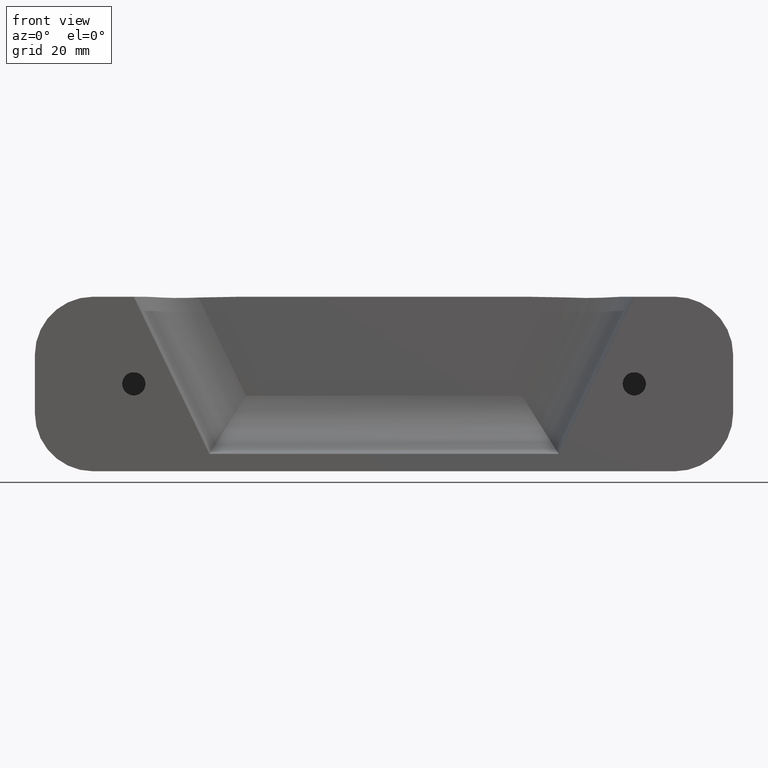
[diagram: clean part render]
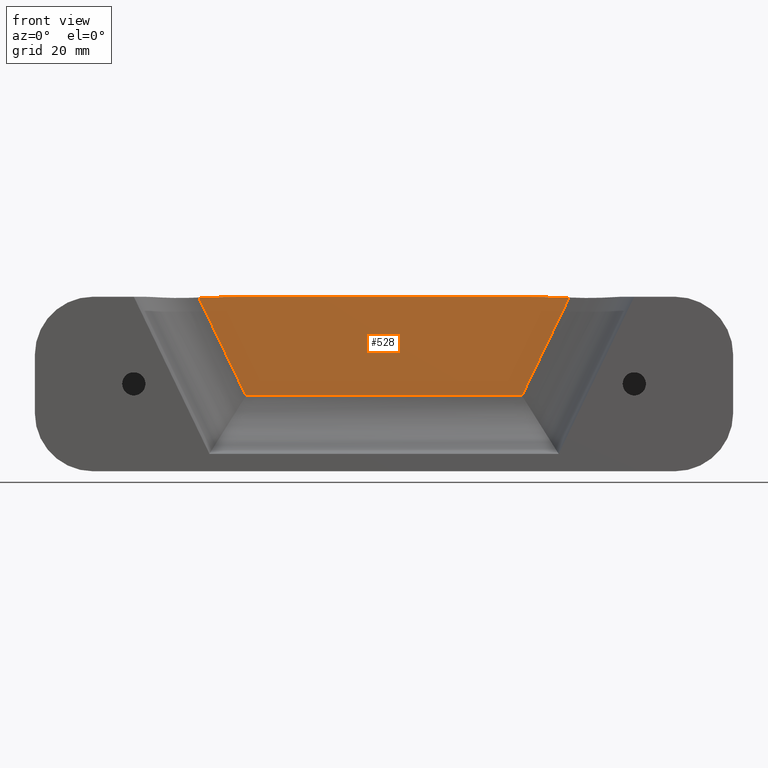
[diagram: same view with one face highlighted and labeled with its STEP entity id]
A machine part, front view. The second image highlights one B-rep face of the part: STEP entity #528.
In plain terms, the highlighted planar face has unit normal (0, -1, 0).
Its self-contained STEP definition (entity closure, byte-faithful):
#36 = CARTESIAN_POINT ( 'NONE',  ( -17.00000000000000000, 9.999999999999998200, 30.00000000000000000 ) ) ;
#37 = VECTOR ( 'NONE', #469, 1000.000000000000000 ) ;
#67 = FACE_OUTER_BOUND ( 'NONE', #685, .T. ) ;
#120 = AXIS2_PLACEMENT_3D ( 'NONE', #312, #313, #314 ) ;
#151 = EDGE_CURVE ( 'NONE', #373, #379, #544, .T. ) ;
#152 = EDGE_CURVE ( 'NONE', #373, #385, #647, .T. ) ;
#156 = EDGE_CURVE ( 'NONE', #350, #386, #543, .T. ) ;
#157 = EDGE_CURVE ( 'NONE', #350, #379, #652, .T. ) ;
#165 = EDGE_CURVE ( 'NONE', #381, #386, #657, .T. ) ;
#180 = CARTESIAN_POINT ( 'NONE',  ( -90.59727264926419800, 9.999999999999989300, 29.91362001034588400 ) ) ;
#183 = CARTESIAN_POINT ( 'NONE',  ( -91.83449836807743300, 9.999999999999989300, 29.86137978565571800 ) ) ;
#187 = CARTESIAN_POINT ( 'NONE',  ( -89.35857953880814400, 9.999999999999987600, 29.94807394158818100 ) ) ;
#311 = PLANE ( 'NONE',  #120 ) ;
#312 = CARTESIAN_POINT ( 'NONE',  ( -102.9999999999999900, 9.999999999999987600, 29.99999999999998200 ) ) ;
#313 = DIRECTION ( 'NONE',  ( 1.224646799147353500E-016, -1.000000000000000000, 2.052041420862275400E-032 ) ) ;
#314 = DIRECTION ( 'NONE',  ( 1.000000000000000000, 1.224646799147353500E-016, 0.0000000000000000000 ) ) ;
#345 = CARTESIAN_POINT ( 'NONE',  ( -33.12275765736458800, 9.999999999999996400, 29.99129226696900500 ) ) ;
#346 = CARTESIAN_POINT ( 'NONE',  ( -30.64339637537564800, 9.999999999999996400, 29.94812160532184100 ) ) ;
#350 = VERTEX_POINT ( 'NONE', #476 ) ;
#373 = VERTEX_POINT ( 'NONE', #503 ) ;
#379 = VERTEX_POINT ( 'NONE', #506 ) ;
#381 = VERTEX_POINT ( 'NONE', #508 ) ;
#385 = VERTEX_POINT ( 'NONE', #511 ) ;
#386 = VERTEX_POINT ( 'NONE', #512 ) ;
#392 = CARTESIAN_POINT ( 'NONE',  ( -29.40414845642340300, 9.999999999999998200, 29.91368001465981100 ) ) ;
#393 = CARTESIAN_POINT ( 'NONE',  ( -28.16550163192256000, 9.999999999999996400, 29.86137978565571800 ) ) ;
#401 = CARTESIAN_POINT ( 'NONE',  ( -102.9999999999999900, 9.999999999999987600, 13.00000000000000200 ) ) ;
#402 = DIRECTION ( 'NONE',  ( 1.000000000000000000, 1.224646799147353500E-016, 0.0000000000000000000 ) ) ;
#468 = CARTESIAN_POINT ( 'NONE',  ( -42.19487193144398400, 9.999999999999994700, 0.7234568558804332900 ) ) ;
#469 = DIRECTION ( 'NONE',  ( 0.4338156187728998700, 5.312709089503605500E-017, 0.9010016697590999000 ) ) ;
#476 = CARTESIAN_POINT ( 'NONE',  ( -35.60327890881890100, 9.999999999999996400, 30.00000000000000000 ) ) ;
#503 = CARTESIAN_POINT ( 'NONE',  ( -91.83449836807743300, 9.999999999999989300, 29.86137978565571800 ) ) ;
#506 = CARTESIAN_POINT ( 'NONE',  ( -84.39672109116274600, 9.999999999999976900, 30.00000000000000000 ) ) ;
#508 = CARTESIAN_POINT ( 'NONE',  ( -36.28394375094198700, 9.999999999999996400, 13.00000000000000200 ) ) ;
#511 = CARTESIAN_POINT ( 'NONE',  ( -83.71605624905801300, 9.999999999999989300, 13.00000000000000400 ) ) ;
#512 = CARTESIAN_POINT ( 'NONE',  ( -28.16550163192256000, 9.999999999999996400, 29.86137978565571800 ) ) ;
#528 = ADVANCED_FACE ( 'NONE', ( #67 ), #311, .T. ) ;
#543 = B_SPLINE_CURVE_WITH_KNOTS ( 'NONE', 3,
 ( #767, #764, #345, #346, #392, #393 ),
 .UNSPECIFIED., .F., .F.,
 ( 4, 2, 4 ),
 ( 0.02439995914436628900, 0.02812365668694389400, 0.03184735422952150000 ),
 .UNSPECIFIED. ) ;
#544 = B_SPLINE_CURVE_WITH_KNOTS ( 'NONE', 3,
 ( #183, #180, #187, #732, #730, #737 ),
 .UNSPECIFIED., .F., .F.,
 ( 4, 2, 4 ),
 ( 0.2086211309165245700, 0.2123729045330488800, 0.2161246781495732000 ),
 .UNSPECIFIED. ) ;
#630 = DIRECTION ( 'NONE',  ( -1.000000000000000000, -1.224646799147353500E-016, 0.0000000000000000000 ) ) ;
#647 = LINE ( 'NONE', #725, #649 ) ;
#649 = VECTOR ( 'NONE', #727, 1000.000000000000000 ) ;
#652 = LINE ( 'NONE', #36, #653 ) ;
#653 = VECTOR ( 'NONE', #630, 1000.000000000000000 ) ;
#657 = LINE ( 'NONE', #468, #37 ) ;
#666 = ORIENTED_EDGE ( 'NONE', *, *, #771, .T. ) ;
#667 = ORIENTED_EDGE ( 'NONE', *, *, #165, .T. ) ;
#668 = ORIENTED_EDGE ( 'NONE', *, *, #156, .F. ) ;
#669 = ORIENTED_EDGE ( 'NONE', *, *, #157, .T. ) ;
#670 = ORIENTED_EDGE ( 'NONE', *, *, #151, .F. ) ;
#671 = ORIENTED_EDGE ( 'NONE', *, *, #152, .T. ) ;
#685 = EDGE_LOOP ( 'NONE', ( #666, #667, #668, #669, #670, #671 ) ) ;
#722 = LINE ( 'NONE', #401, #724 ) ;
#724 = VECTOR ( 'NONE', #402, 1000.000000000000000 ) ;
#725 = CARTESIAN_POINT ( 'NONE',  ( -93.98998330240898700, 9.999999999999989300, 34.33815618772897700 ) ) ;
#727 = DIRECTION ( 'NONE',  ( 0.4338156187728998700, 5.312709089503601800E-017, -0.9010016697590999000 ) ) ;
#730 = CARTESIAN_POINT ( 'NONE',  ( -85.63825669440206000, 9.999999999999989300, 30.00000000000000400 ) ) ;
#732 = CARTESIAN_POINT ( 'NONE',  ( -86.87907236205182900, 9.999999999999989300, 29.99127364141558200 ) ) ;
#737 = CARTESIAN_POINT ( 'NONE',  ( -84.39672109116274600, 9.999999999999976900, 30.00000000000000000 ) ) ;
#764 = CARTESIAN_POINT ( 'NONE',  ( -34.36287173860417700, 9.999999999999996400, 29.99999999999990800 ) ) ;
#767 = CARTESIAN_POINT ( 'NONE',  ( -35.60327890881890100, 9.999999999999996400, 30.00000000000000000 ) ) ;
#771 = EDGE_CURVE ( 'NONE', #385, #381, #722, .T. ) ;